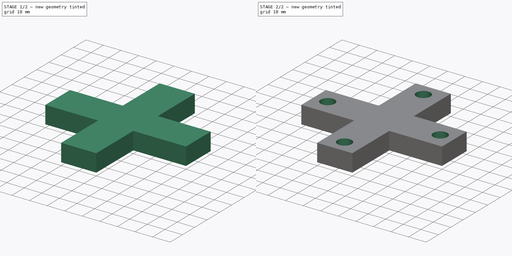
[diagram: build sequence overview — one tinted view per stage of 2, left to right]
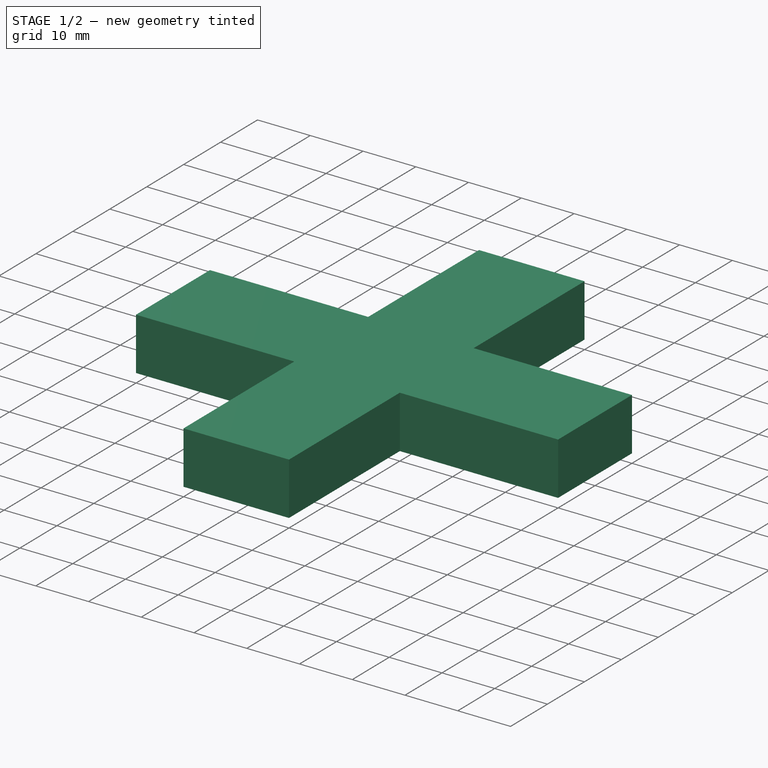
[diagram: stage 1 of 2 — iso view after this stage's code; geometry added in this stage tinted green]
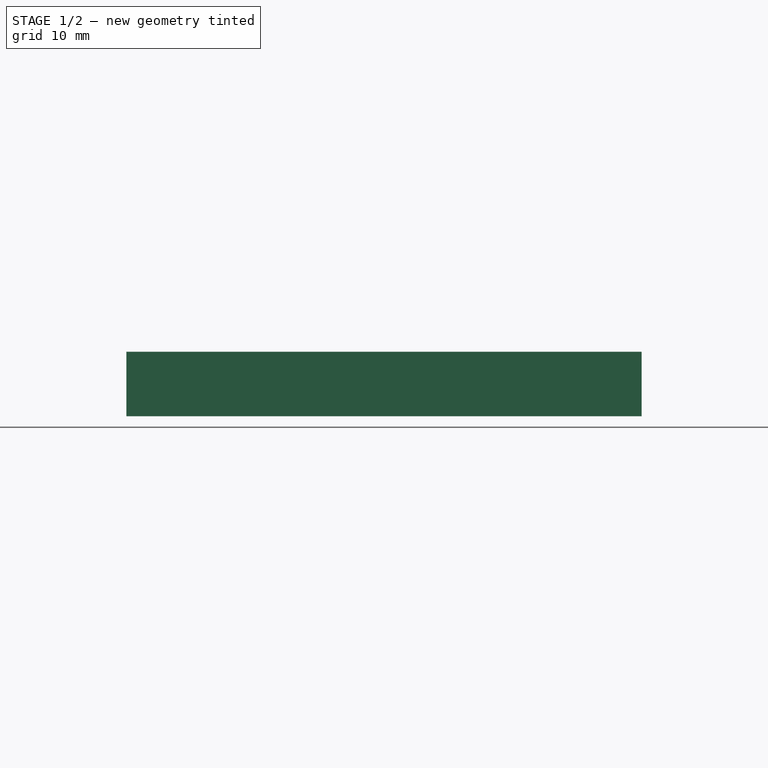
[diagram: stage 1 of 2 — front view after this stage's code; geometry added in this stage tinted green]
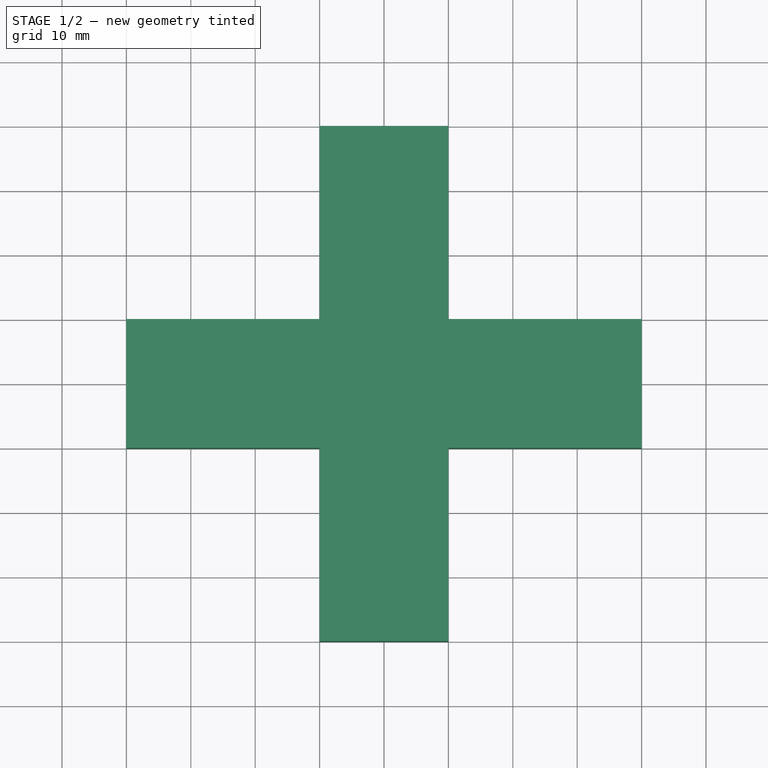
[diagram: stage 1 of 2 — top view after this stage's code; geometry added in this stage tinted green]
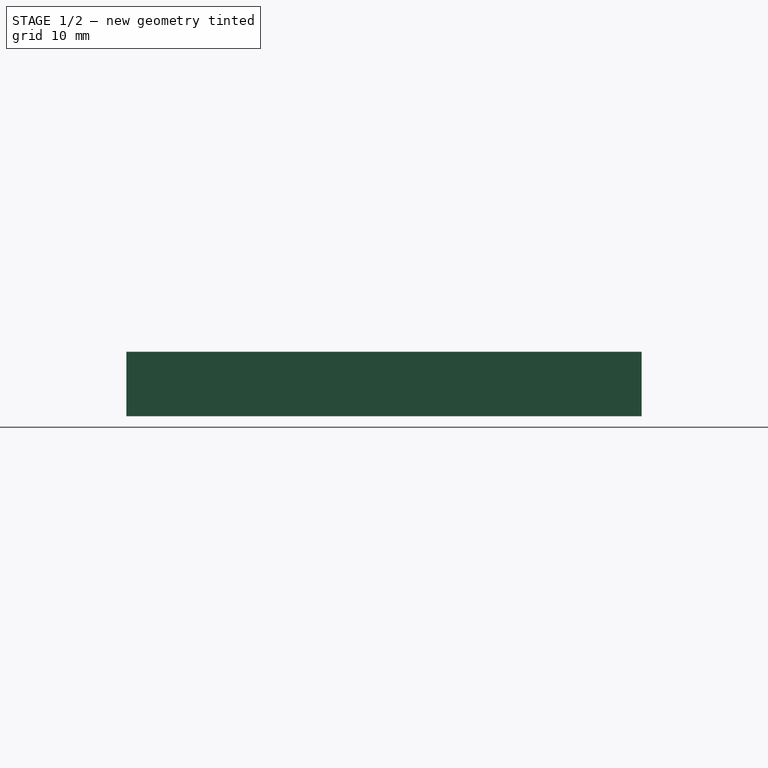
[diagram: stage 1 of 2 — right view after this stage's code; geometry added in this stage tinted green]
FCSTD DOCUMENT  (FreeCAD 0.16R6707 (Git))
Label: T
License: CreativeCommons Attribution-ShareAlike
LicenseURL: http://creativecommons.org/licenses/by-sa/4.0/
objects: Sketcher::SketchObject×2, PartDesign::Pad×1, PartDesign::Pocket×1
note: 6 computed .brp shape members not serialized (recipe doc carries the construction recipe); baked Part::Feature solids carry a one-line shape summary decoded from their .brp

FEATURE [Sketcher::SketchObject] Sketch  label="BCT_Base"
  sketch-geometry (12):
    g0: LineSegment StartX=-10 StartY=40 StartZ=0 EndX=10 EndY=40 EndZ=0
    g1: LineSegment StartX=10 StartY=40 StartZ=0 EndX=10 EndY=10 EndZ=0
    g2: LineSegment StartX=10 StartY=10 StartZ=0 EndX=40 EndY=10 EndZ=0
    g3: LineSegment StartX=40 StartY=10 StartZ=0 EndX=40 EndY=-10 EndZ=0
    g4: LineSegment StartX=40 StartY=-10 StartZ=0 EndX=10 EndY=-10 EndZ=0
    g5: LineSegment StartX=10 StartY=-10 StartZ=0 EndX=10 EndY=-40 EndZ=0
    g6: LineSegment StartX=10 StartY=-40 StartZ=0 EndX=-10 EndY=-40 EndZ=0
    g7: LineSegment StartX=-10 StartY=-40 StartZ=0 EndX=-10 EndY=-10 EndZ=0
    g8: LineSegment StartX=-10 StartY=-10 StartZ=0 EndX=-40 EndY=-10 EndZ=0
    g9: LineSegment StartX=-40 StartY=-10 StartZ=0 EndX=-40 EndY=10 EndZ=0
    g10: LineSegment StartX=-40 StartY=10 StartZ=0 EndX=-10 EndY=10 EndZ=0
    g11: LineSegment StartX=-10 StartY=10 StartZ=0 EndX=-10 EndY=40 EndZ=0
  constraints (36):
    c: Coincident(g0,g1)
    c: Vertical(g1)
    c: Coincident(g1,g2)
    c: Horizontal(g2)
    c: Coincident(g2,g3)
    c: Coincident(g3,g4)
    c: Horizontal(g4)
    c: Coincident(g4,g5)
    c: Coincident(g5,g6)
    c: Coincident(g6,g7)
    c: Coincident(g7,g8)
    c: Horizontal(g8)
    c: Coincident(g8,g9)
    c: Coincident(g9,g10)
    c: Coincident(g10,g11)
    c: Coincident(g0,g11)
    c: Parallel(g11,g1)
    c: Parallel(g0,g6)
    c: Parallel(g5,g7)
    c: Parallel(g9,g3)
    c: Parallel(g10,g8)
    c: Perpendicular(g3,g4)
    c: Perpendicular(g11,g0)
    c: Perpendicular(g6,g7)
    c: Symmetric(g8,g9,g-1)
    c: Symmetric(g0,g0,g-2)
    c: Equal(g0,g6)
    c: Equal(g3,g9)
    c: DistanceY(g6,g0) = 80
    c: DistanceY(g8,g9) = 20
    c: Equal(g11,g7)
    c: DistanceX(g0,g0) = 20
    c: Equal(g2,g10)
    c: Symmetric(g6,g5,g-2)
    c: Symmetric(g2,g3,g-1)
    c: DistanceX(g9,g10) = 30
FEATURE [PartDesign::Pad] Pad  label="Base"
  Length = 10
  Length2 = 100
  Sketch = -> Sketch
  Type = 0
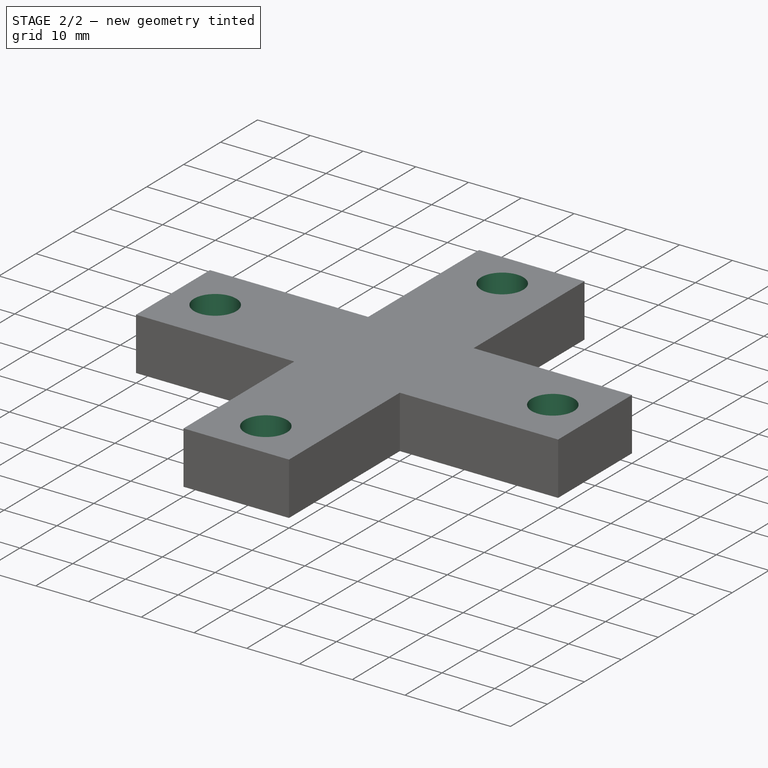
[diagram: stage 2 of 2 — iso view after this stage's code; geometry added in this stage tinted green]
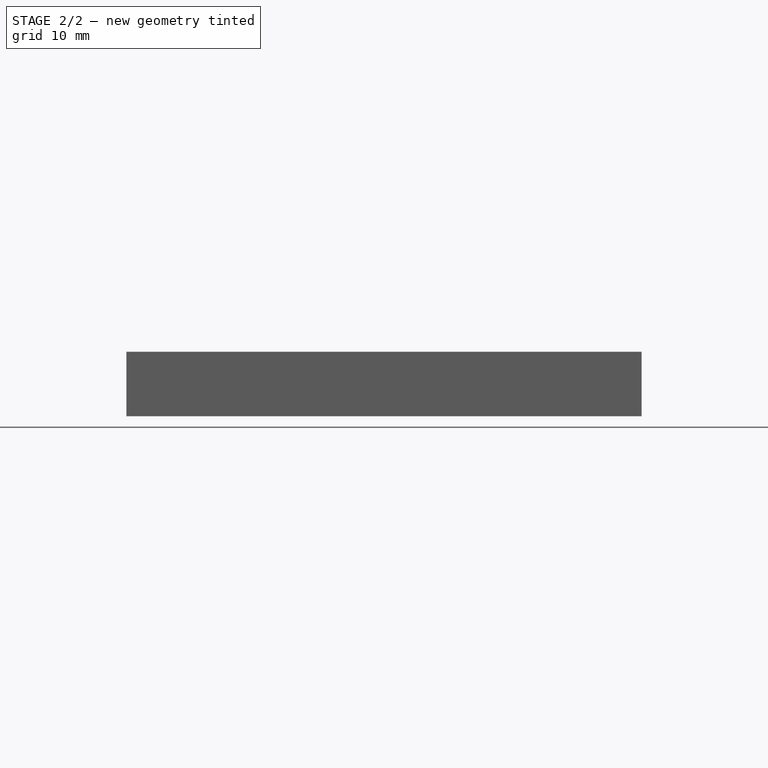
[diagram: stage 2 of 2 — front view after this stage's code; geometry added in this stage tinted green]
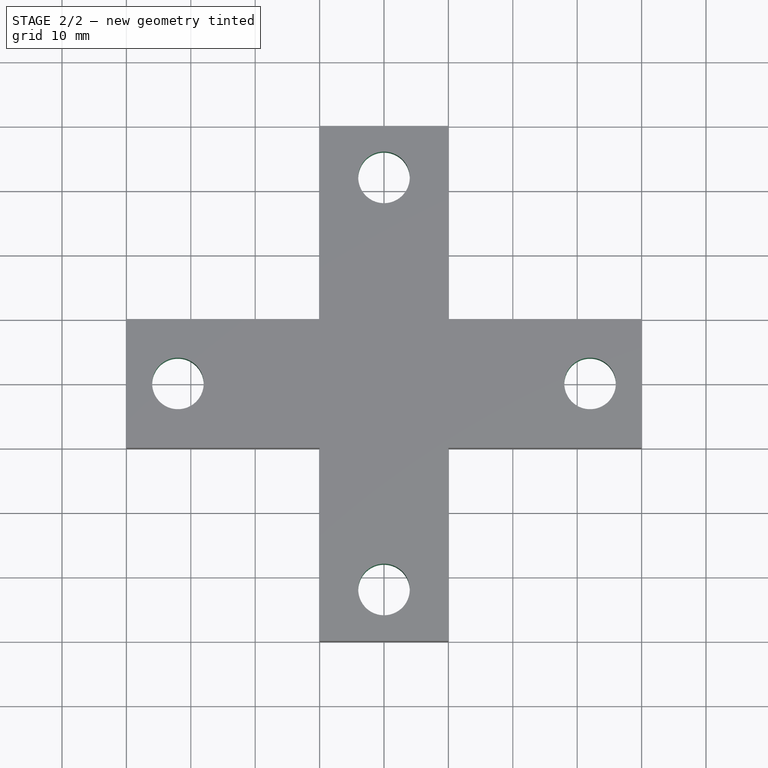
[diagram: stage 2 of 2 — top view after this stage's code; geometry added in this stage tinted green]
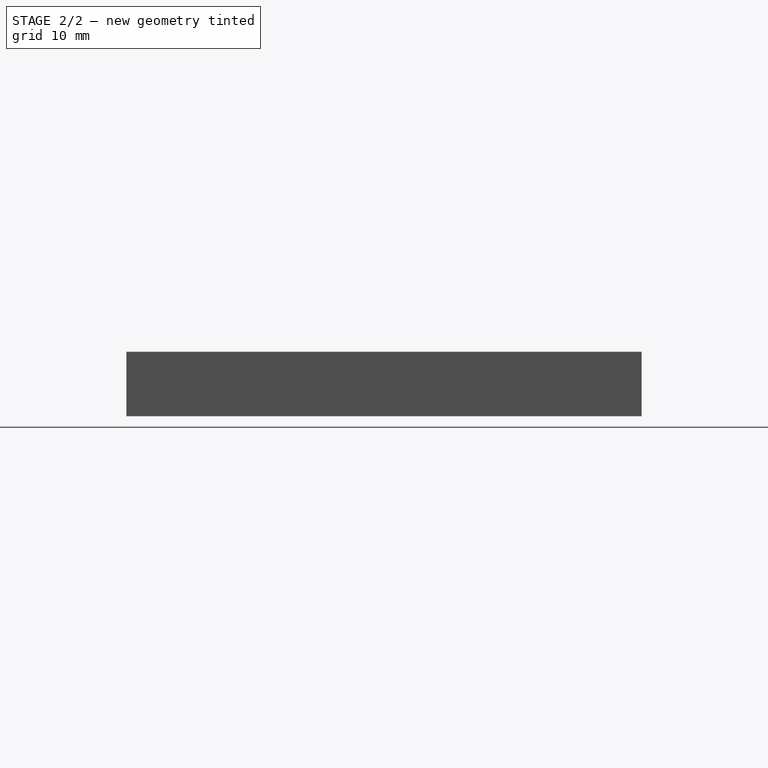
[diagram: stage 2 of 2 — right view after this stage's code; geometry added in this stage tinted green]
FEATURE [Sketcher::SketchObject] Sketch001  label="BCT_Taladros"
  Placement = pos=(0,0,10) rot=(0,0,1;0rad)
  Support = -> Pad [Face14]
  sketch-geometry (4):
    g0: Circle CenterX=0 CenterY=32 CenterZ=0 NormalX=0 NormalY=0 NormalZ=1 Radius=4
    g1: Circle CenterX=-32 CenterY=0 CenterZ=0 NormalX=0 NormalY=0 NormalZ=1 Radius=4
    g2: Circle CenterX=0 CenterY=-32 CenterZ=0 NormalX=0 NormalY=0 NormalZ=1 Radius=4
    g3: Circle CenterX=32 CenterY=0 CenterZ=0 NormalX=0 NormalY=0 NormalZ=1 Radius=4
  constraints (10):
    c: Equal(g0,g1)
    c: Equal(g1,g2)
    c: Equal(g2,g3)
    c: Radius(g0) = 4
    c: Symmetric(g0,g2,g-1)
    c: Symmetric(g1,g3,g-2)
    c: DistanceX(g2,g-1) = 0
    c: DistanceY(g3,g-1) = 0
    c: DistanceY(g2,g-1) = 32
    c: DistanceX(g-1,g3) = 32
FEATURE [PartDesign::Pocket] Pocket  label="Base_Taladrada"
  Length = 5
  Sketch = -> Sketch001
  Type = 1
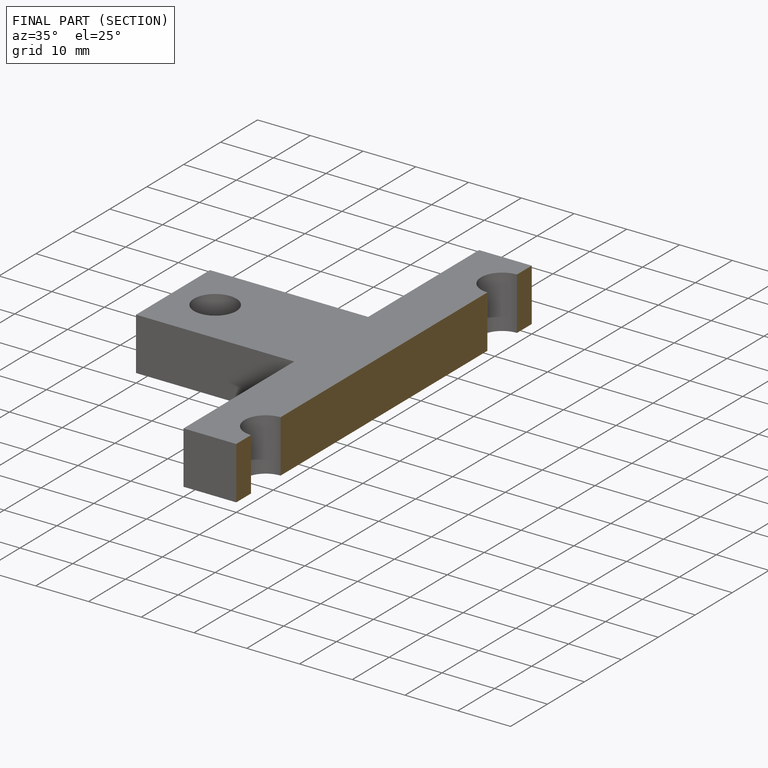
[diagram: finished part — half-section view (interior)]
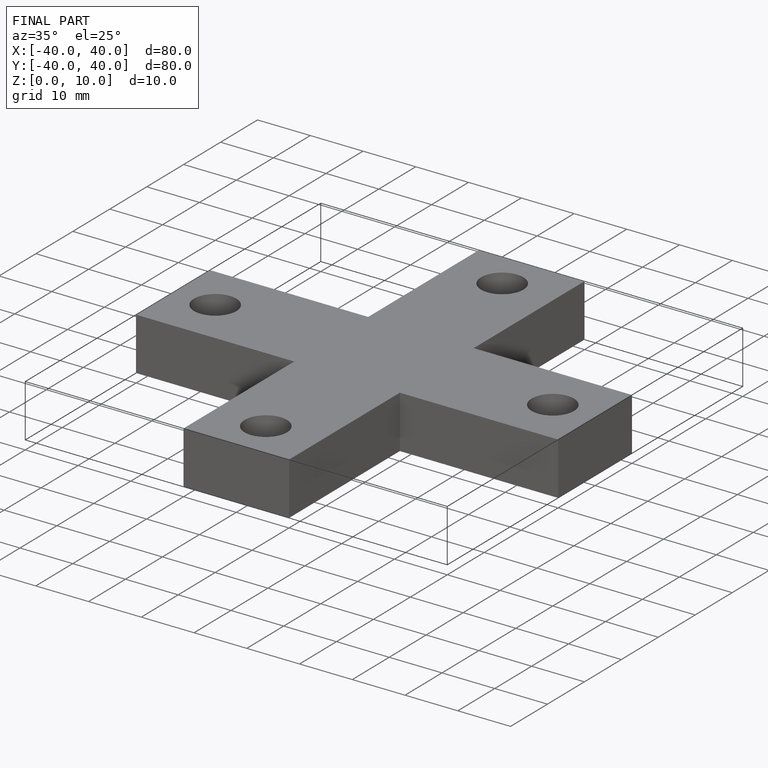
[diagram: finished part — iso view with bounding-box wireframe]
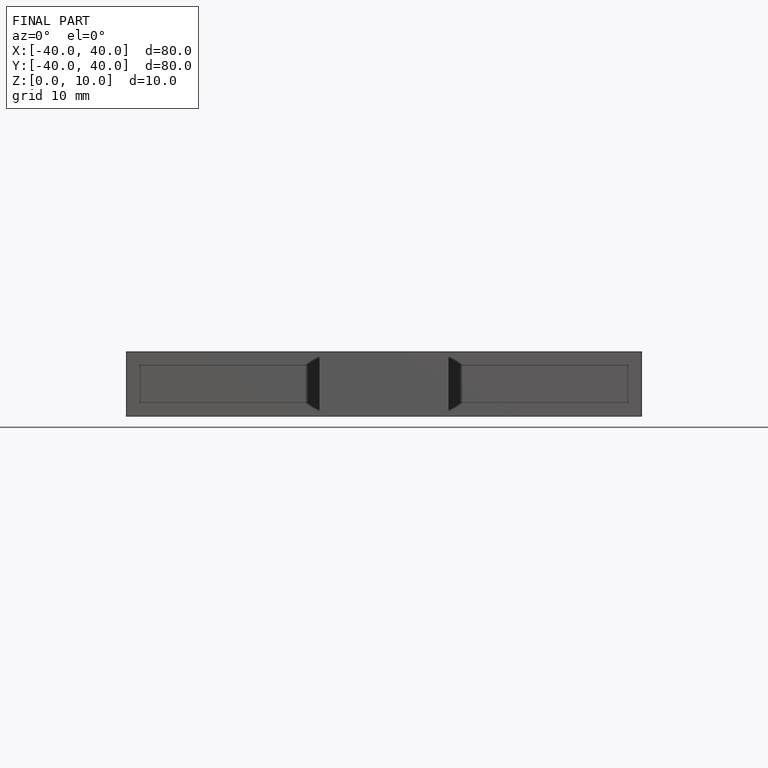
[diagram: finished part — front view with bounding-box wireframe]
